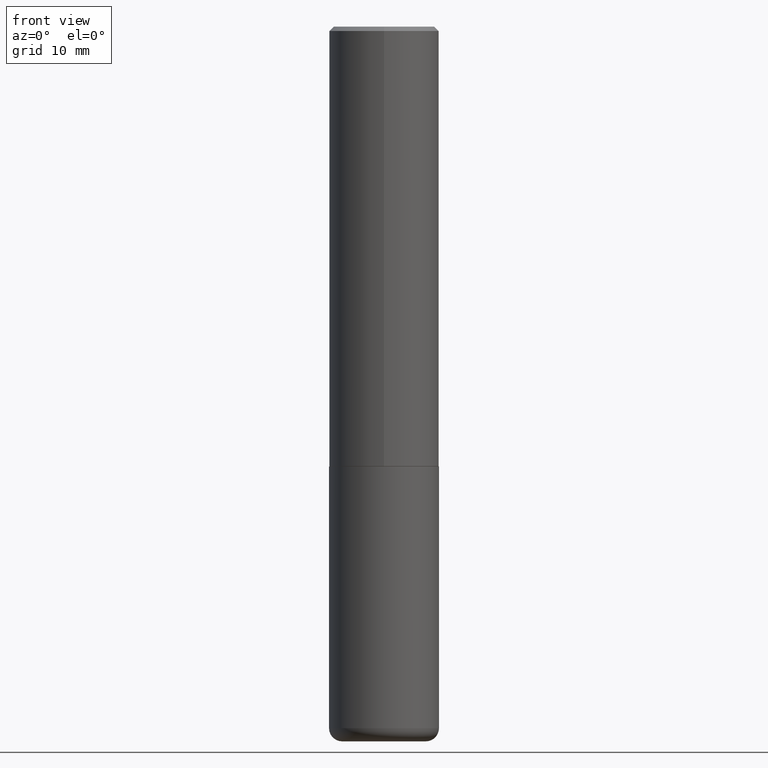
[diagram: clean part render]
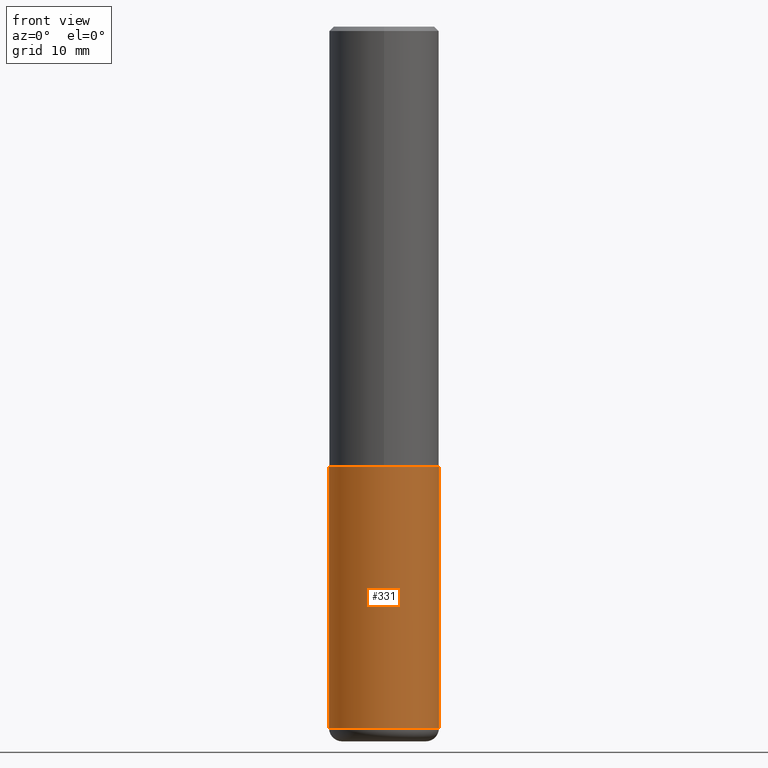
[diagram: same view with one face highlighted and labeled with its STEP entity id]
A machine part, front view. The second image highlights one B-rep face of the part: STEP entity #331.
In plain terms, the highlighted cylindrical surface (partial cylindrical patch) has radius 6.35 mm, axis along (-0, 0, 1).
Its self-contained STEP definition (entity closure, byte-faithful):
#18 = DIRECTION ( 'NONE',  ( 1.000000000000000000, -6.982962677686266711E-15, 0.000000000000000000 ) ) ;
#28 = AXIS2_PLACEMENT_3D ( 'NONE', #206, #407, #77 ) ;
#30 = CARTESIAN_POINT ( 'NONE',  ( 7.801045491730585789E-29, -1.113782547090963453E-14, -3.189999999999999947 ) ) ;
#32 = LINE ( 'NONE', #366, #378 ) ;
#45 = DIRECTION ( 'NONE',  ( -2.445468806185136597E-29, 3.491481338843145583E-15, 1.000000000000000000 ) ) ;
#75 = CYLINDRICAL_SURFACE ( 'NONE', #28, 0.2500000000000000000 ) ;
#77 = DIRECTION ( 'NONE',  ( 1.000000000000000000, -6.982962677686266711E-15, 4.876176775795935793E-29 ) ) ;
#86 = ORIENTED_EDGE ( 'NONE', *, *, #247, .T. ) ;
#125 = EDGE_CURVE ( 'NONE', #185, #251, #292, .T. ) ;
#126 = CARTESIAN_POINT ( 'NONE',  ( 0.2500000000000000000, -8.728703347107857054E-15, -2.000000000000000000 ) ) ;
#138 = CARTESIAN_POINT ( 'NONE',  ( -0.2500000000000000000, -7.284037234897712778E-15, -2.000000000000000000 ) ) ;
#145 = CARTESIAN_POINT ( 'NONE',  ( -0.2500000000000000000, 1.776356839400250465E-15, -1.229733772563726445E-29 ) ) ;
#150 = ORIENTED_EDGE ( 'NONE', *, *, #125, .T. ) ;
#169 = DIRECTION ( 'NONE',  ( -2.445468806185136877E-29, 3.491481338843145188E-15, 1.000000000000000000 ) ) ;
#177 = FACE_OUTER_BOUND ( 'NONE', #253, .T. ) ;
#185 = VERTEX_POINT ( 'NONE', #297 ) ;
#201 = VERTEX_POINT ( 'NONE', #126 ) ;
#206 = CARTESIAN_POINT ( 'NONE',  ( 0.000000000000000000, 0.000000000000000000, 0.000000000000000000 ) ) ;
#221 = CIRCLE ( 'NONE', #233, 0.2500000000000000000 ) ;
#233 = AXIS2_PLACEMENT_3D ( 'NONE', #303, #45, #18 ) ;
#237 = CARTESIAN_POINT ( 'NONE',  ( 0.2499999999999999722, -1.288356614033120121E-14, -3.189999999999999947 ) ) ;
#239 = AXIS2_PLACEMENT_3D ( 'NONE', #30, #390, #329 ) ;
#247 = EDGE_CURVE ( 'NONE', #251, #201, #32, .T. ) ;
#251 = VERTEX_POINT ( 'NONE', #237 ) ;
#253 = EDGE_LOOP ( 'NONE', ( #256, #150, #86, #408 ) ) ;
#256 = ORIENTED_EDGE ( 'NONE', *, *, #399, .F. ) ;
#271 = LINE ( 'NONE', #145, #334 ) ;
#272 = DIRECTION ( 'NONE',  ( -2.445468806185136877E-29, 3.491481338843145188E-15, 1.000000000000000000 ) ) ;
#292 = CIRCLE ( 'NONE', #239, 0.2500000000000000000 ) ;
#297 = CARTESIAN_POINT ( 'NONE',  ( -0.2499999999999999722, -9.361468631509382488E-15, -3.189999999999999947 ) ) ;
#303 = CARTESIAN_POINT ( 'NONE',  ( 4.890937612370273194E-29, -6.982962677686291165E-15, -2.000000000000000000 ) ) ;
#329 = DIRECTION ( 'NONE',  ( 1.000000000000000000, -6.982962677686270655E-15, 0.000000000000000000 ) ) ;
#331 = ADVANCED_FACE ( 'NONE', ( #177 ), #75, .T. ) ;
#334 = VECTOR ( 'NONE', #272, 39.37007874015748143 ) ;
#366 = CARTESIAN_POINT ( 'NONE',  ( 0.2500000000000000000, -1.745740669421566678E-15, 1.219044193948983948E-29 ) ) ;
#376 = EDGE_CURVE ( 'NONE', #379, #201, #221, .T. ) ;
#378 = VECTOR ( 'NONE', #169, 39.37007874015748143 ) ;
#379 = VERTEX_POINT ( 'NONE', #138 ) ;
#390 = DIRECTION ( 'NONE',  ( -2.445468806185136597E-29, 3.491481338843145583E-15, 1.000000000000000000 ) ) ;
#399 = EDGE_CURVE ( 'NONE', #185, #379, #271, .T. ) ;
#407 = DIRECTION ( 'NONE',  ( -2.445468806185136597E-29, 3.491481338843145583E-15, 1.000000000000000000 ) ) ;
#408 = ORIENTED_EDGE ( 'NONE', *, *, #376, .F. ) ;